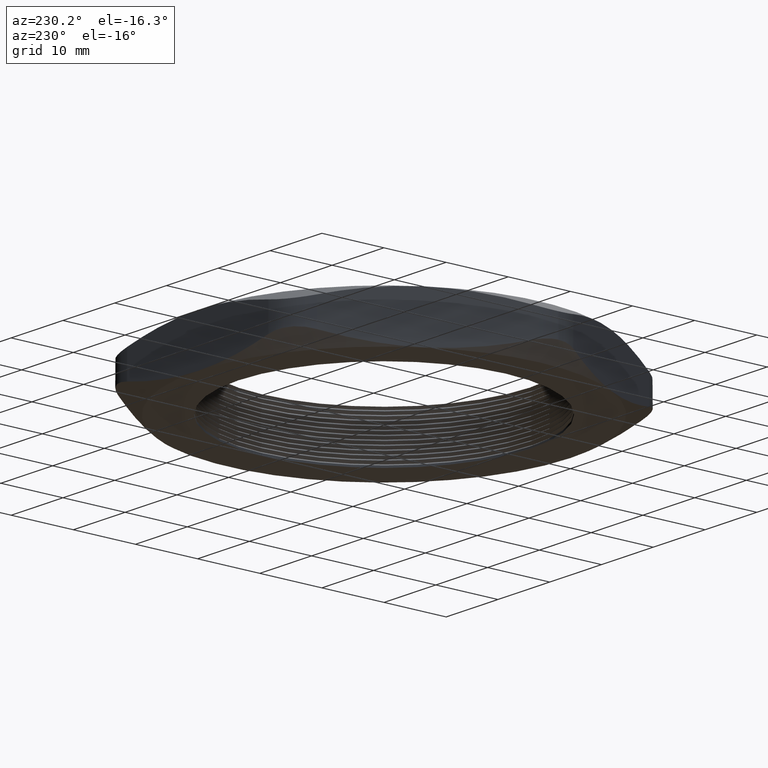
[diagram: clean part render]
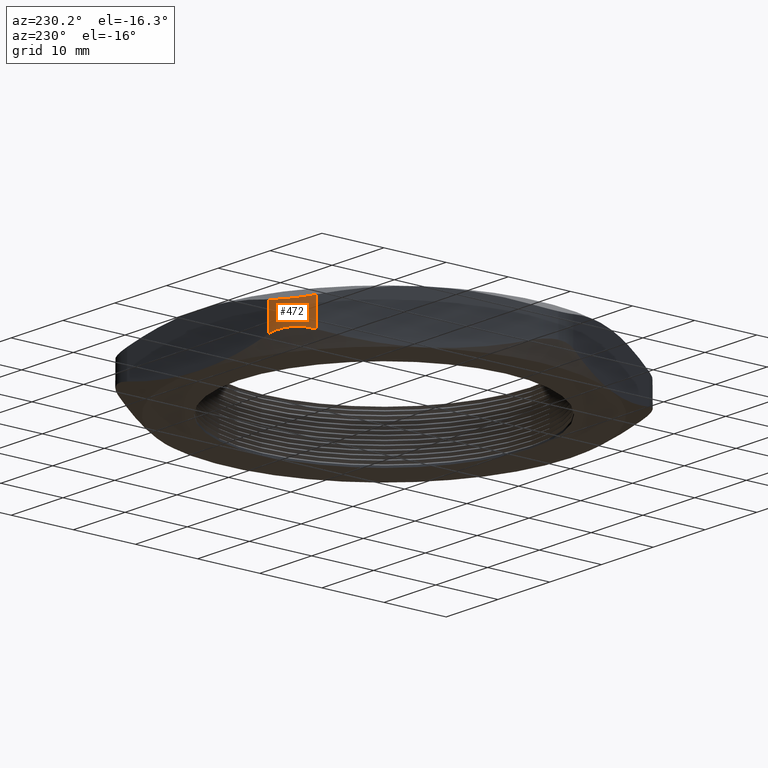
[diagram: same view with one face highlighted and labeled with its STEP entity id]
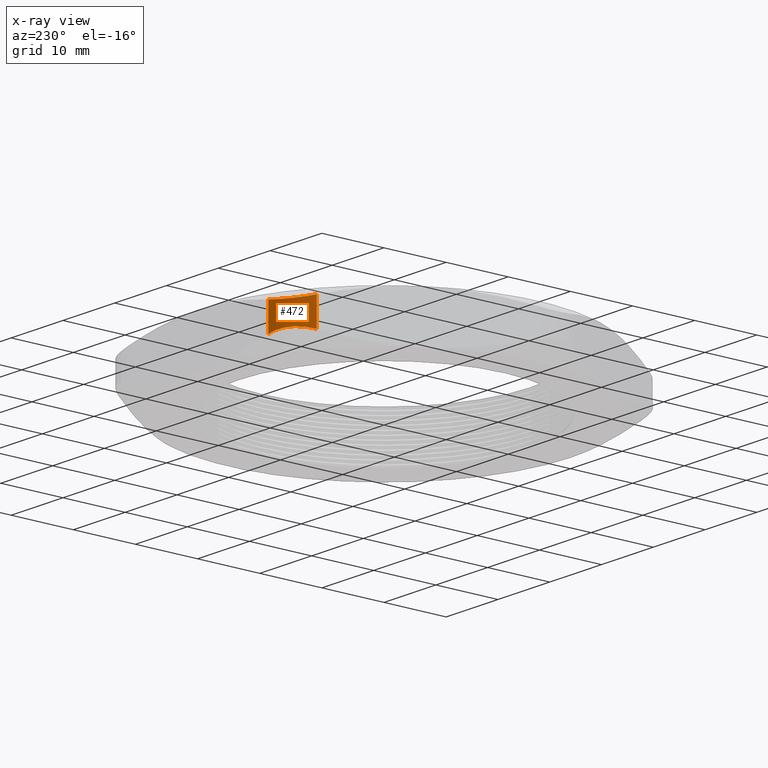
[diagram: x-ray of the same camera — body ghosted, the highlighted face saturated]
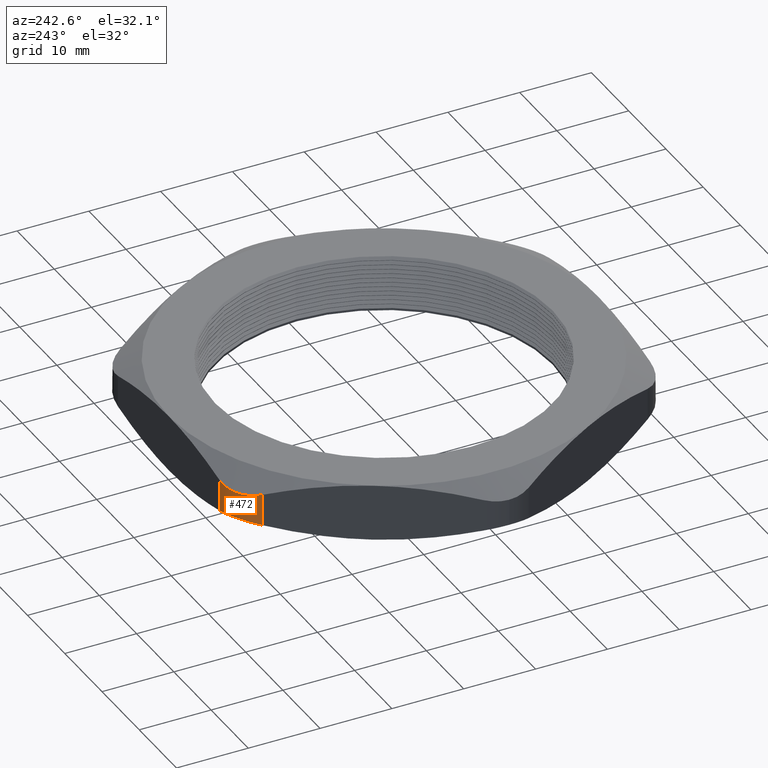
[diagram: same view with one face highlighted and labeled with its STEP entity id]
A machine part, auxiliary view. The second image highlights one B-rep face of the part: STEP entity #472.
The next image is the same camera in x-ray: the body ghosted, the highlighted face saturated — about 0% of this face is hidden behind the body in this view.
A second angle (auxiliary view) of the same face is appended — the face is thin or edge-on in the first view.
In plain terms, the highlighted cylindrical surface (partial cylindrical patch) has radius 6.35 mm, axis along (0, 0, -1).
Its self-contained STEP definition (entity closure, byte-faithful):
#59 = EDGE_CURVE ( 'NONE', #213, #616, #721, .T. ) ;
#150 = VERTEX_POINT ( 'NONE', #970 ) ;
#212 = EDGE_CURVE ( 'NONE', #150, #213, #1083, .T. ) ;
#213 = VERTEX_POINT ( 'NONE', #1075 ) ;
#369 = EDGE_CURVE ( 'NONE', #613, #150, #1464, .T. ) ;
#400 = ORIENTED_EDGE ( 'NONE', *, *, #212, .F. ) ;
#401 = ORIENTED_EDGE ( 'NONE', *, *, #369, .F. ) ;
#402 = ORIENTED_EDGE ( 'NONE', *, *, #612, .F. ) ;
#472 = ADVANCED_FACE ( 'NONE', ( #1620 ), #1619, .T. ) ;
#473 = EDGE_LOOP ( 'NONE', ( #474, #400, #401, #402 ) ) ;
#474 = ORIENTED_EDGE ( 'NONE', *, *, #59, .F. ) ;
#612 = EDGE_CURVE ( 'NONE', #616, #613, #1803, .T. ) ;
#613 = VERTEX_POINT ( 'NONE', #1795 ) ;
#616 = VERTEX_POINT ( 'NONE', #1793 ) ;
#714 = CARTESIAN_POINT ( 'NONE',  ( -0.6221819559806112100, 1.165272639550648700, 0.2286349243502643900 ) ) ;
#715 = CARTESIAN_POINT ( 'NONE',  ( -0.6116474606707504900, 1.168826090778309500, 0.2296625828566576700 ) ) ;
#716 = CARTESIAN_POINT ( 'NONE',  ( -0.5799181923317213700, 1.177247800526430600, 0.2336981853431918100 ) ) ;
#717 = CARTESIAN_POINT ( 'NONE',  ( -0.5585335758802321100, 1.180000000000000200, 0.2376214738663903500 ) ) ;
#718 = CARTESIAN_POINT ( 'NONE',  ( -0.5369357503463522100, 1.180000000000000200, 0.2427859541343046200 ) ) ;
#721 = B_SPLINE_CURVE_WITH_KNOTS ( 'NONE', 3,
 ( #718, #717, #716, #715, #714, #778, #777, #776, #775, #774, #773, #772, #771, #770 ),
 .UNSPECIFIED., .F., .F.,
 ( 4, 2, 2, 2, 2, 2, 4 ),
 ( 3.576224061345498000E-018, 0.001669271586080333100, 0.002503907379120498100, 0.003338543172160662700, 0.004173178965200826900, 0.005007814758240992800, 0.006677086344321320200 ),
 .UNSPECIFIED. ) ;
#770 = CARTESIAN_POINT ( 'NONE',  ( -0.7534421012924617000, 1.055000000000000200, 0.2427859541343045700 ) ) ;
#771 = CARTESIAN_POINT ( 'NONE',  ( -0.7426406280276903700, 1.073708700491183200, 0.2376202493319563600 ) ) ;
#772 = CARTESIAN_POINT ( 'NONE',  ( -0.7292618027920844100, 1.091195033875054500, 0.2336283984944731700 ) ) ;
#773 = CARTESIAN_POINT ( 'NONE',  ( -0.7062144216875245700, 1.114290582444687100, 0.2296370671020657500 ) ) ;
#774 = CARTESIAN_POINT ( 'NONE',  ( -0.6980114634144941600, 1.121510473299437900, 0.2286275982255477100 ) ) ;
#775 = CARTESIAN_POINT ( 'NONE',  ( -0.6805205885013933000, 1.134951313671749300, 0.2272701564282435000 ) ) ;
#776 = CARTESIAN_POINT ( 'NONE',  ( -0.6712656668977310400, 1.141129690300331600, 0.2269317070438216800 ) ) ;
#777 = CARTESIAN_POINT ( 'NONE',  ( -0.6522617552205256500, 1.152081483259583200, 0.2269398675414505400 ) ) ;
#778 = CARTESIAN_POINT ( 'NONE',  ( -0.6424447765496059700, 1.156909620522817300, 0.2272802097087079400 ) ) ;
#970 = CARTESIAN_POINT ( 'NONE',  ( -0.5369357503463521000, 1.180000000000000200, 0.06721404586569534900 ) ) ;
#1075 = CARTESIAN_POINT ( 'NONE',  ( -0.5369357503463522100, 1.180000000000000200, 0.2427859541343046200 ) ) ;
#1076 = DIRECTION ( 'NONE',  ( 0.0000000000000000000, 0.0000000000000000000, 1.000000000000000000 ) ) ;
#1077 = VECTOR ( 'NONE', #1076, 39.37007874015748100 ) ;
#1078 = CARTESIAN_POINT ( 'NONE',  ( -0.5369357503463519900, 1.180000000000000200, 0.3100000000000000000 ) ) ;
#1083 = LINE ( 'NONE', #1078, #1077 ) ;
#1447 = CARTESIAN_POINT ( 'NONE',  ( -0.5369357503463521000, 1.180000000000000200, 0.06721404586569534900 ) ) ;
#1448 = CARTESIAN_POINT ( 'NONE',  ( -0.5585386968758961900, 1.180000000000001300, 0.07237975066804369600 ) ) ;
#1449 = CARTESIAN_POINT ( 'NONE',  ( -0.5803717184231761400, 1.177156764165109700, 0.07637160150552684000 ) ) ;
#1450 = CARTESIAN_POINT ( 'NONE',  ( -0.6118967407510952400, 1.168744920922675900, 0.08036293289793418300 ) ) ;
#1451 = CARTESIAN_POINT ( 'NONE',  ( -0.6222508287803755200, 1.165250896099423200, 0.08137240177445229100 ) ) ;
#1452 = CARTESIAN_POINT ( 'NONE',  ( -0.6426363754475590300, 1.156823774276417800, 0.08272984357175639000 ) ) ;
#1453 = CARTESIAN_POINT ( 'NONE',  ( -0.6526144673638901700, 1.151897965371903900, 0.08306829295617831900 ) ) ;
#1454 = CARTESIAN_POINT ( 'NONE',  ( -0.6716009541221928900, 1.140915991567794000, 0.08306013245854947100 ) ) ;
#1455 = CARTESIAN_POINT ( 'NONE',  ( -0.6806907329805717000, 1.134828307281984200, 0.08271979029129207500 ) ) ;
#1456 = CARTESIAN_POINT ( 'NONE',  ( -0.6980647301955040800, 1.121461699430825100, 0.08136507564973563500 ) ) ;
#1457 = CARTESIAN_POINT ( 'NONE',  ( -0.7064093568846971900, 1.114115284490268200, 0.08033741714334224900 ) ) ;
#1458 = CARTESIAN_POINT ( 'NONE',  ( -0.7295674056393838300, 1.090847786939236100, 0.07630181465680810300 ) ) ;
#1459 = CARTESIAN_POINT ( 'NONE',  ( -0.7426431885255218000, 1.073704265578844500, 0.07237852613360958000 ) ) ;
#1460 = CARTESIAN_POINT ( 'NONE',  ( -0.7534421012924617000, 1.055000000000000200, 0.06721404586569534900 ) ) ;
#1464 = B_SPLINE_CURVE_WITH_KNOTS ( 'NONE', 3,
 ( #1460, #1459, #1458, #1457, #1456, #1455, #1454, #1453, #1452, #1451, #1450, #1449, #1448, #1447 ),
 .UNSPECIFIED., .F., .F.,
 ( 4, 2, 2, 2, 2, 2, 4 ),
 ( 4.925667812690175100E-018, 0.001669271586080326800, 0.002503907379120491200, 0.003338543172160655800, 0.004173178965200820800, 0.005007814758240984900, 0.006677086344321321900 ),
 .UNSPECIFIED. ) ;
#1615 = DIRECTION ( 'NONE',  ( -1.000000000000000000, 0.0000000000000000000, 0.0000000000000000000 ) ) ;
#1616 = DIRECTION ( 'NONE',  ( 0.0000000000000000000, 0.0000000000000000000, -1.000000000000000000 ) ) ;
#1617 = AXIS2_PLACEMENT_3D ( 'NONE', #1625, #1616, #1615 ) ;
#1619 = CYLINDRICAL_SURFACE ( 'NONE', #1617, 0.2500000000000000000 ) ;
#1620 = FACE_OUTER_BOUND ( 'NONE', #473, .T. ) ;
#1625 = CARTESIAN_POINT ( 'NONE',  ( -0.5369357503463521000, 0.9300000000000001600, 0.3100000000000000000 ) ) ;
#1793 = CARTESIAN_POINT ( 'NONE',  ( -0.7534421012924617000, 1.055000000000000200, 0.2427859541343045700 ) ) ;
#1795 = CARTESIAN_POINT ( 'NONE',  ( -0.7534421012924617000, 1.055000000000000200, 0.06721404586569534900 ) ) ;
#1796 = DIRECTION ( 'NONE',  ( 0.0000000000000000000, 0.0000000000000000000, -1.000000000000000000 ) ) ;
#1797 = VECTOR ( 'NONE', #1796, 39.37007874015748100 ) ;
#1798 = CARTESIAN_POINT ( 'NONE',  ( -0.7534421012924618100, 1.055000000000000200, 0.3100000000000000000 ) ) ;
#1803 = LINE ( 'NONE', #1798, #1797 ) ;